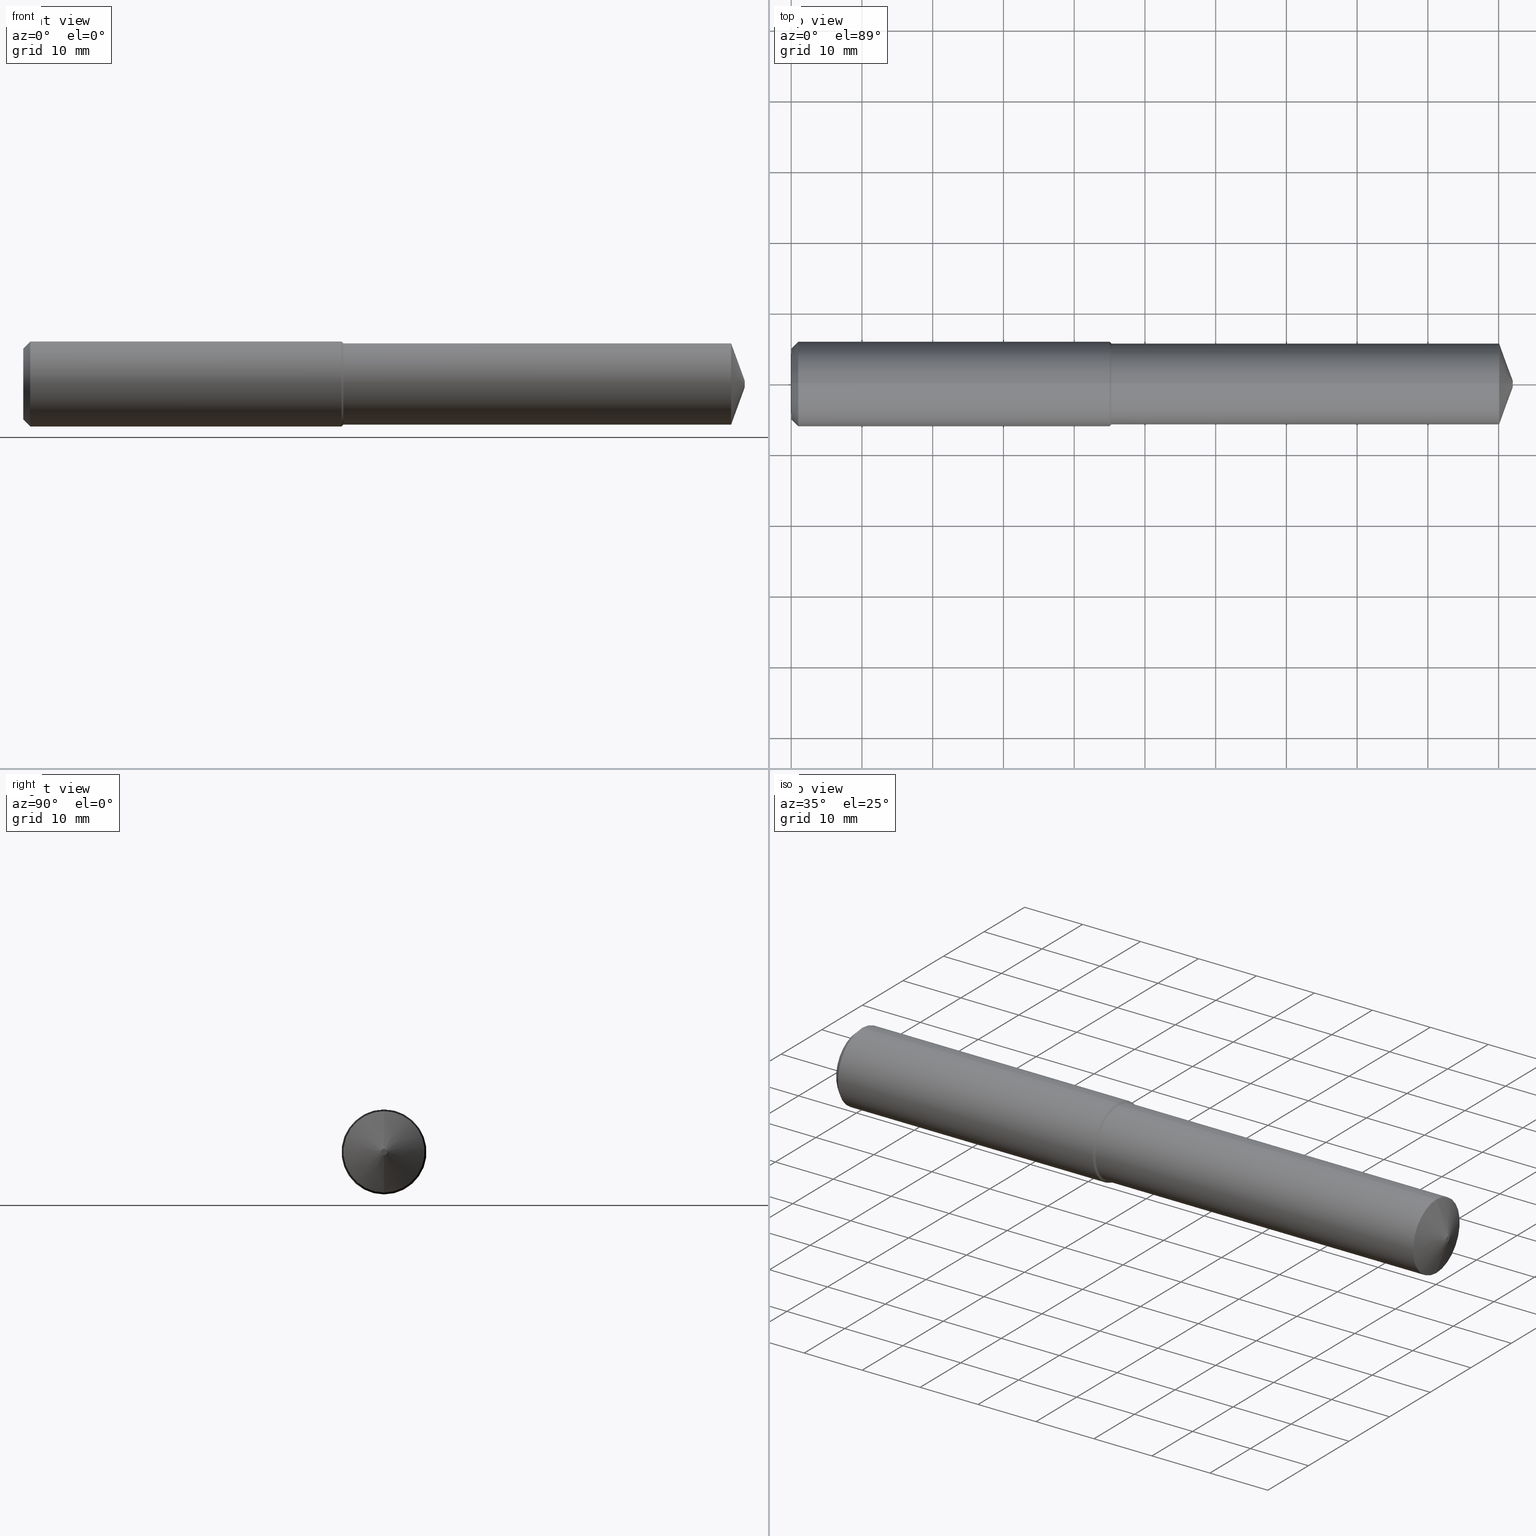
[diagram: canonical four-view strip — front | top / right | iso, engineering-drawing reading convention]
A machine part, canonical four-view strip (front | top / right | iso — engineering-drawing reading convention). The complete STEP part file that produces these views, byte-faithful:
ISO-10303-21;
HEADER;
FILE_DESCRIPTION (( 'STEP AP203' ),
    '1' );
FILE_NAME ('407006-DFX3-452A.STEP',
    '2024-10-02T21:16:29',
    ( '' ),
    ( '' ),
    'SwSTEP 2.0',
    'SolidWorks 2024',
    '' );
FILE_SCHEMA (( 'CONFIG_CONTROL_DESIGN' ));
ENDSEC;

DATA;
#1 = EDGE_CURVE ( 'NONE', #365, #278, #6, .T. ) ;
#2 = ADVANCED_FACE ( 'NONE', ( #90 ), #323, .T. ) ;
#3 = CARTESIAN_POINT ( 'NONE',  ( -0.03808593750000075634, 2.892866454678788763E-17, 0.2362204724409450174 ) ) ;
#4 = CARTESIAN_POINT ( 'NONE',  ( 4.015748031496062964, 0.000000000000000000, 0.000000000000000000 ) ) ;
#5 = DESIGN_CONTEXT ( 'detailed design', #164, 'design' ) ;
#6 = LINE ( 'NONE', #199, #132 ) ;
#7 = CARTESIAN_POINT ( 'NONE',  ( 0.03937007874015747977, 2.892866454678788147E-17, 0.2362204724409449619 ) ) ;
#8 = APPROVAL_STATUS ( 'not_yet_approved' ) ;
#9 = VERTEX_POINT ( 'NONE', #125 ) ;
#10 = DIRECTION ( 'NONE',  ( 0.7071067811865472397, 8.659560562354936556E-17, 0.7071067811865477948 ) ) ;
#11 = CONICAL_SURFACE ( 'NONE', #325, 0.2260000000000002007, 0.7853981633974382870 ) ;
#12 = CC_DESIGN_PERSON_AND_ORGANIZATION_ASSIGNMENT ( #120, #277, ( #167 ) ) ;
#13 = EDGE_LOOP ( 'NONE', ( #244, #76, #34, #363 ) ) ;
#14 = ORIENTED_EDGE ( 'NONE', *, *, #58, .T. ) ;
#15 = DATE_AND_TIME ( #180, #293 ) ;
#16 = ORIENTED_EDGE ( 'NONE', *, *, #71, .F. ) ;
#17 = EDGE_CURVE ( 'NONE', #210, #298, #220, .T. ) ;
#18 = PRODUCT_DEFINITION ( 'UNKNOWN', '', #167, #5 ) ;
#19 = CONICAL_SURFACE ( 'NONE', #211, 0.01750000000000049780, 1.221730476396032827 ) ;
#20 = CARTESIAN_POINT ( 'NONE',  ( 3.939860237651560126, 0.000000000000000000, 0.000000000000000000 ) ) ;
#21 = ORIENTED_EDGE ( 'NONE', *, *, #316, .T. ) ;
#22 = FACE_OUTER_BOUND ( 'NONE', #267, .T. ) ;
#23 = DATE_AND_TIME ( #65, #41 ) ;
#24 = DIRECTION ( 'NONE',  ( -1.000000000000000000, 0.000000000000000000, 0.000000000000000000 ) ) ;
#25 = DIRECTION ( 'NONE',  ( 0.000000000000000000, 0.000000000000000000, 1.000000000000000000 ) ) ;
#26 = APPROVAL ( #248, 'UNSPECIFIED' ) ;
#27 = DIRECTION ( 'NONE',  ( 0.000000000000000000, 0.000000000000000000, 1.000000000000000000 ) ) ;
#28 = PLANE ( 'NONE',  #317 ) ;
#29 = APPROVAL ( #8, 'UNSPECIFIED' ) ;
#30 = DIRECTION ( 'NONE',  ( 0.000000000000000000, 0.000000000000000000, 1.000000000000000000 ) ) ;
#31 = CARTESIAN_POINT ( 'NONE',  ( 1.781874015748031725, 2.767701766073021672E-17, 0.2260000000000002007 ) ) ;
#32 = DIRECTION ( 'NONE',  ( 0.000000000000000000, 0.000000000000000000, -1.000000000000000000 ) ) ;
#33 = DIRECTION ( 'NONE',  ( 0.000000000000000000, 0.000000000000000000, 1.000000000000000000 ) ) ;
#34 = ORIENTED_EDGE ( 'NONE', *, *, #197, .T. ) ;
#35 = EDGE_LOOP ( 'NONE', ( #150, #207, #356, #337 ) ) ;
#36 = APPLICATION_CONTEXT ( 'configuration controlled 3d designs of mechanical parts and assemblies' ) ;
#37 = DIRECTION ( 'NONE',  ( 0.000000000000000000, 0.000000000000000000, -1.000000000000000000 ) ) ;
#38 = ORIENTED_EDGE ( 'NONE', *, *, #287, .F. ) ;
#39 = VECTOR ( 'NONE', #51, 39.37007874015748143 ) ;
#40 = DATE_TIME_ROLE ( 'creation_date' ) ;
#41 = LOCAL_TIME ( 14, 16, 29.00000000000000000, #326 ) ;
#42 = EDGE_LOOP ( 'NONE', ( #240, #327 ) ) ;
#43 = ORIENTED_EDGE ( 'NONE', *, *, #82, .F. ) ;
#44 = ADVANCED_FACE ( 'NONE', ( #268 ), #19, .T. ) ;
#45 = LINE ( 'NONE', #300, #53 ) ;
#46 = EDGE_LOOP ( 'NONE', ( #361, #14, #21, #333 ) ) ;
#47 = CARTESIAN_POINT ( 'NONE',  ( 0.03937007874015747977, 0.000000000000000000, 0.000000000000000000 ) ) ;
#48 = DIRECTION ( 'NONE',  ( 1.000000000000000000, -0.000000000000000000, -0.000000000000000000 ) ) ;
#49 = PERSON_AND_ORGANIZATION ( #276, #212 ) ;
#50 = DIRECTION ( 'NONE',  ( -0.7071067811865545671, 8.659560562354846577E-17, -0.7071067811865404673 ) ) ;
#51 = DIRECTION ( 'NONE',  ( 1.000000000000000000, -0.000000000000000000, -0.000000000000000000 ) ) ;
#52 = DIRECTION ( 'NONE',  ( 0.000000000000000000, 0.000000000000000000, -1.000000000000000000 ) ) ;
#53 = VECTOR ( 'NONE', #10, 39.37007874015748143 ) ;
#54 = AXIS2_PLACEMENT_3D ( 'NONE', #374, #134, #254 ) ;
#55 = APPROVAL_PERSON_ORGANIZATION ( #359, #29, #204 ) ;
#56 = CARTESIAN_POINT ( 'NONE',  ( 3.939860237651560126, 0.000000000000000000, 0.000000000000000000 ) ) ;
#57 = ADVANCED_FACE ( 'NONE', ( #178 ), #246, .T. ) ;
#58 = EDGE_CURVE ( 'NONE', #261, #9, #259, .T. ) ;
#59 = DIRECTION ( 'NONE',  ( 0.000000000000000000, 0.000000000000000000, -1.000000000000000000 ) ) ;
#60 = CARTESIAN_POINT ( 'NONE',  ( 0.03937007874015747977, 0.000000000000000000, -0.2362204724409449619 ) ) ;
#61 = VECTOR ( 'NONE', #176, 39.37007874015748143 ) ;
#62 = ORIENTED_EDGE ( 'NONE', *, *, #213, .T. ) ;
#63 = CARTESIAN_POINT ( 'NONE',  ( -0.03808593750000075634, 0.000000000000000000, 0.000000000000000000 ) ) ;
#64 = APPROVAL_PERSON_ORGANIZATION ( #271, #67, #367 ) ;
#65 = CALENDAR_DATE ( 2024, 2, 10 ) ;
#66 = ORIENTED_EDGE ( 'NONE', *, *, #296, .T. ) ;
#67 = APPROVAL ( #328, 'UNSPECIFIED' ) ;
#68 = DATE_AND_TIME ( #214, #173 ) ;
#69 = APPROVAL_DATE_TIME ( #243, #29 ) ;
#70 = VERTEX_POINT ( 'NONE', #98 ) ;
#71 = EDGE_CURVE ( 'NONE', #121, #298, #45, .T. ) ;
#72 = DIRECTION ( 'NONE',  ( 1.000000000000000000, 0.000000000000000000, 0.000000000000000000 ) ) ;
#73 = ORIENTED_EDGE ( 'NONE', *, *, #272, .F. ) ;
#74 = DIRECTION ( 'NONE',  ( 1.000000000000000000, -0.000000000000000000, -0.000000000000000000 ) ) ;
#75 = SECURITY_CLASSIFICATION_LEVEL ( 'unclassified' ) ;
#76 = ORIENTED_EDGE ( 'NONE', *, *, #92, .F. ) ;
#77 = DIRECTION ( 'NONE',  ( 1.000000000000000000, -0.000000000000000000, -0.000000000000000000 ) ) ;
#78 = VECTOR ( 'NONE', #110, 39.37007874015748143 ) ;
#79 = AXIS2_PLACEMENT_3D ( 'NONE', #4, #291, #30 ) ;
#80 = CARTESIAN_POINT ( 'NONE',  ( 1.771653543307086576, 0.000000000000000000, 0.2362204724409451007 ) ) ;
#81 = DIRECTION ( 'NONE',  ( 1.000000000000000000, -0.000000000000000000, -0.000000000000000000 ) ) ;
#82 = EDGE_CURVE ( 'NONE', #298, #210, #262, .T. ) ;
#83 = CARTESIAN_POINT ( 'NONE',  ( 1.186075246418296407E-18, 0.1968503937007874405, 0.000000000000000000 ) ) ;
#84 = AXIS2_PLACEMENT_3D ( 'NONE', #373, #48, #136 ) ;
#85 = CONICAL_SURFACE ( 'NONE', #79, 0.01750000000000049780, 1.221730476396032827 ) ;
#86 = FACE_OUTER_BOUND ( 'NONE', #329, .T. ) ;
#87 = LINE ( 'NONE', #320, #336 ) ;
#88 = CIRCLE ( 'NONE', #302, 0.2362204724409451007 ) ;
#89 = ADVANCED_BREP_SHAPE_REPRESENTATION ( '407006-DFX3-452A', ( #138, #113 ), #247 ) ;
#90 = FACE_OUTER_BOUND ( 'NONE', #181, .T. ) ;
#91 =( NAMED_UNIT ( * ) PLANE_ANGLE_UNIT ( ) SI_UNIT ( $, .RADIAN. ) );
#92 = EDGE_CURVE ( 'NONE', #154, #365, #295, .T. ) ;
#93 = EDGE_LOOP ( 'NONE', ( #205, #234, #97, #299 ) ) ;
#94 = LOCAL_TIME ( 14, 16, 29.00000000000000000, #155 ) ;
#95 = ORIENTED_EDGE ( 'NONE', *, *, #17, .F. ) ;
#96 = EDGE_LOOP ( 'NONE', ( #16, #66, #303, #43 ) ) ;
#97 = ORIENTED_EDGE ( 'NONE', *, *, #107, .T. ) ;
#98 = CARTESIAN_POINT ( 'NONE',  ( 3.939860237651560126, 0.000000000000000000, 0.2260000000000005060 ) ) ;
#99 = COORDINATED_UNIVERSAL_TIME_OFFSET ( 8, 0, .BEHIND. ) ;
#100 = ORIENTED_EDGE ( 'NONE', *, *, #272, .T. ) ;
#101 = DIRECTION ( 'NONE',  ( -1.000000000000000000, 0.000000000000000000, 0.000000000000000000 ) ) ;
#102 = CARTESIAN_POINT ( 'NONE',  ( 0.03937007874015747977, 0.000000000000000000, 0.000000000000000000 ) ) ;
#103 = CARTESIAN_POINT ( 'NONE',  ( 1.781874015748031725, 0.000000000000000000, 0.2260000000000002007 ) ) ;
#104 = AXIS2_PLACEMENT_3D ( 'NONE', #206, #351, #228 ) ;
#105 = CARTESIAN_POINT ( 'NONE',  ( 4.268512490100411279E-18, 0.000000000000000000, -0.1968503937007874405 ) ) ;
#106 = EDGE_CURVE ( 'NONE', #365, #154, #171, .T. ) ;
#107 = EDGE_CURVE ( 'NONE', #152, #158, #201, .T. ) ;
#108 = DATE_AND_TIME ( #288, #350 ) ;
#109 = FACE_OUTER_BOUND ( 'NONE', #275, .T. ) ;
#110 = DIRECTION ( 'NONE',  ( -0.7071067811865545671, 0.000000000000000000, 0.7071067811865404673 ) ) ;
#111 = VECTOR ( 'NONE', #255, 39.37007874015748143 ) ;
#112 = CC_DESIGN_SECURITY_CLASSIFICATION ( #344, ( #167 ) ) ;
#113 = AXIS2_PLACEMENT_3D ( 'NONE', #183, #209, #72 ) ;
#114 = EDGE_CURVE ( 'NONE', #261, #158, #286, .T. ) ;
#115 = EDGE_CURVE ( 'NONE', #9, #261, #280, .T. ) ;
#116 = FACE_OUTER_BOUND ( 'NONE', #46, .T. ) ;
#117 = PERSON_AND_ORGANIZATION ( #276, #212 ) ;
#118 = ORIENTED_EDGE ( 'NONE', *, *, #257, .F. ) ;
#119 = DIRECTION ( 'NONE',  ( 1.000000000000000000, -0.000000000000000000, -0.000000000000000000 ) ) ;
#120 = PERSON_AND_ORGANIZATION ( #276, #212 ) ;
#121 = VERTEX_POINT ( 'NONE', #342 ) ;
#122 = DIRECTION ( 'NONE',  ( 0.000000000000000000, 0.000000000000000000, -1.000000000000000000 ) ) ;
#123 = PRODUCT_RELATED_PRODUCT_CATEGORY ( 'detail', '', ( #208 ) ) ;
#124 = ORIENTED_EDGE ( 'NONE', *, *, #227, .F. ) ;
#125 = CARTESIAN_POINT ( 'NONE',  ( 1.781874015748031725, 0.000000000000000000, -0.2260000000000002007 ) ) ;
#126 = AXIS2_PLACEMENT_3D ( 'NONE', #377, #251, #162 ) ;
#127 = CC_DESIGN_APPROVAL ( #29, ( #18 ) ) ;
#128 = DIRECTION ( 'NONE',  ( 1.000000000000000000, -0.000000000000000000, -0.000000000000000000 ) ) ;
#129 = DATE_TIME_ROLE ( 'classification_date' ) ;
#130 = FACE_OUTER_BOUND ( 'NONE', #184, .T. ) ;
#131 = DIRECTION ( 'NONE',  ( 0.000000000000000000, 0.000000000000000000, -1.000000000000000000 ) ) ;
#132 = VECTOR ( 'NONE', #230, 39.37007874015748143 ) ;
#133 = VECTOR ( 'NONE', #185, 39.37007874015748143 ) ;
#134 = DIRECTION ( 'NONE',  ( 1.000000000000000000, -0.000000000000000000, -0.000000000000000000 ) ) ;
#135 = ADVANCED_FACE ( 'NONE', ( #345 ), #28, .T. ) ;
#136 = DIRECTION ( 'NONE',  ( 0.000000000000000000, 0.000000000000000000, -1.000000000000000000 ) ) ;
#137 = LINE ( 'NONE', #191, #111 ) ;
#138 = MANIFOLD_SOLID_BREP ( 'Body', #324 ) ;
#139 = CIRCLE ( 'NONE', #349, 0.2260000000000004783 ) ;
#140 = LINE ( 'NONE', #266, #61 ) ;
#141 = DIRECTION ( 'NONE',  ( 1.000000000000000000, -0.000000000000000000, -0.000000000000000000 ) ) ;
#142 = DIRECTION ( 'NONE',  ( 1.000000000000000000, -0.000000000000000000, -0.000000000000000000 ) ) ;
#143 = DIMENSIONAL_EXPONENTS ( 1.000000000000000000, 0.000000000000000000, 0.000000000000000000, 0.000000000000000000, 0.000000000000000000, 0.000000000000000000, 0.000000000000000000 ) ;
#144 = AXIS2_PLACEMENT_3D ( 'NONE', #102, #219, #163 ) ;
#145 = ADVANCED_FACE ( 'NONE', ( #86 ), #309, .T. ) ;
#146 = CC_DESIGN_PERSON_AND_ORGANIZATION_ASSIGNMENT ( #239, #362, ( #208 ) ) ;
#147 = DIRECTION ( 'NONE',  ( 0.7071067811865472397, 0.000000000000000000, -0.7071067811865477948 ) ) ;
#148 = DIRECTION ( 'NONE',  ( 1.000000000000000000, -0.000000000000000000, -0.000000000000000000 ) ) ;
#149 = APPLICATION_PROTOCOL_DEFINITION ( 'international standard', 'config_control_design', 1994, #36 ) ;
#150 = ORIENTED_EDGE ( 'NONE', *, *, #106, .F. ) ;
#151 = LENGTH_MEASURE_WITH_UNIT ( LENGTH_MEASURE( 0.02539999999999999897 ), #297 );
#152 = VERTEX_POINT ( 'NONE', #189 ) ;
#153 = APPROVAL_DATE_TIME ( #68, #67 ) ;
#154 = VERTEX_POINT ( 'NONE', #282 ) ;
#155 = COORDINATED_UNIVERSAL_TIME_OFFSET ( 8, 0, .BEHIND. ) ;
#156 = ORIENTED_EDGE ( 'NONE', *, *, #186, .F. ) ;
#157 = PERSON_AND_ORGANIZATION_ROLE ( 'creator' ) ;
#158 = VERTEX_POINT ( 'NONE', #80 ) ;
#159 = ADVANCED_FACE ( 'NONE', ( #22 ), #222, .T. ) ;
#160 = CIRCLE ( 'NONE', #354, 0.1968503937007874405 ) ;
#161 = CARTESIAN_POINT ( 'NONE',  ( 1.771653543307086576, 0.000000000000000000, 0.000000000000000000 ) ) ;
#162 = DIRECTION ( 'NONE',  ( 0.000000000000000000, 0.000000000000000000, -1.000000000000000000 ) ) ;
#163 = DIRECTION ( 'NONE',  ( 0.000000000000000000, 0.000000000000000000, -1.000000000000000000 ) ) ;
#164 = APPLICATION_CONTEXT ( 'configuration controlled 3d designs of mechanical parts and assemblies' ) ;
#165 = CONICAL_SURFACE ( 'NONE', #54, 0.2362204724409449619, 0.7853981633974487231 ) ;
#166 = DIRECTION ( 'NONE',  ( -0.000000000000000000, 0.000000000000000000, -1.000000000000000000 ) ) ;
#167 = PRODUCT_DEFINITION_FORMATION_WITH_SPECIFIED_SOURCE ( 'ANY', '', #208, .NOT_KNOWN. ) ;
#168 = CARTESIAN_POINT ( 'NONE',  ( 0.03937007874015747977, 0.000000000000000000, -0.2362204724409449619 ) ) ;
#169 = LINE ( 'NONE', #60, #226 ) ;
#170 = CARTESIAN_POINT ( 'NONE',  ( -0.03808593750000075634, 0.000000000000000000, 0.000000000000000000 ) ) ;
#171 = CIRCLE ( 'NONE', #221, 0.01750000000000049780 ) ;
#172 = EDGE_CURVE ( 'NONE', #210, #152, #190, .T. ) ;
#173 = LOCAL_TIME ( 14, 16, 29.00000000000000000, #99 ) ;
#174 = ORIENTED_EDGE ( 'NONE', *, *, #371, .T. ) ;
#175 = ORIENTED_EDGE ( 'NONE', *, *, #296, .F. ) ;
#176 = DIRECTION ( 'NONE',  ( 1.000000000000000000, -0.000000000000000000, -0.000000000000000000 ) ) ;
#177 = ORIENTED_EDGE ( 'NONE', *, *, #82, .T. ) ;
#178 = FACE_OUTER_BOUND ( 'NONE', #238, .T. ) ;
#179 = CC_DESIGN_PERSON_AND_ORGANIZATION_ASSIGNMENT ( #357, #200, ( #344 ) ) ;
#180 = CALENDAR_DATE ( 2024, 2, 10 ) ;
#181 = EDGE_LOOP ( 'NONE', ( #38, #177, #270, #73 ) ) ;
#182 = AXIS2_PLACEMENT_3D ( 'NONE', #170, #142, #59 ) ;
#183 = CARTESIAN_POINT ( 'NONE',  ( 0.000000000000000000, 0.000000000000000000, 0.000000000000000000 ) ) ;
#184 = EDGE_LOOP ( 'NONE', ( #62, #202, #95, #118 ) ) ;
#185 = DIRECTION ( 'NONE',  ( 1.000000000000000000, -0.000000000000000000, -0.000000000000000000 ) ) ;
#186 = EDGE_CURVE ( 'NONE', #9, #152, #319, .T. ) ;
#187 = ORIENTED_EDGE ( 'NONE', *, *, #17, .T. ) ;
#188 = ADVANCED_FACE ( 'NONE', ( #130 ), #310, .T. ) ;
#189 = CARTESIAN_POINT ( 'NONE',  ( 1.771653543307086576, 2.892866454678789996E-17, -0.2362204724409451007 ) ) ;
#190 = LINE ( 'NONE', #258, #39 ) ;
#191 = CARTESIAN_POINT ( 'NONE',  ( 4.015748031496062964, 0.000000000000000000, 0.01750000000000049780 ) ) ;
#192 = VECTOR ( 'NONE', #50, 39.37007874015748143 ) ;
#193 = CARTESIAN_POINT ( 'NONE',  ( 1.781874015748031725, 0.000000000000000000, 0.000000000000000000 ) ) ;
#194 = CC_DESIGN_DATE_AND_TIME_ASSIGNMENT ( #15, #40, ( #18 ) ) ;
#195 = DIRECTION ( 'NONE',  ( -1.000000000000000000, 0.000000000000000000, 0.000000000000000000 ) ) ;
#196 = CC_DESIGN_APPROVAL ( #67, ( #167 ) ) ;
#197 = EDGE_CURVE ( 'NONE', #154, #70, #137, .T. ) ;
#198 = CYLINDRICAL_SURFACE ( 'NONE', #182, 0.2260000000000003395 ) ;
#199 = CARTESIAN_POINT ( 'NONE',  ( 4.015748031496062964, 2.143131898507929234E-18, -0.01750000000000049780 ) ) ;
#200 = PERSON_AND_ORGANIZATION_ROLE ( 'classification_officer' ) ;
#201 = CIRCLE ( 'NONE', #322, 0.2362204724409451007 ) ;
#202 = ORIENTED_EDGE ( 'NONE', *, *, #71, .T. ) ;
#203 = CC_DESIGN_APPROVAL ( #26, ( #344 ) ) ;
#204 = APPROVAL_ROLE ( '' ) ;
#205 = ORIENTED_EDGE ( 'NONE', *, *, #115, .F. ) ;
#206 = CARTESIAN_POINT ( 'NONE',  ( 4.015748031496062964, 0.000000000000000000, 0.000000000000000000 ) ) ;
#207 = ORIENTED_EDGE ( 'NONE', *, *, #1, .T. ) ;
#208 = PRODUCT ( '407006-DFX3-452A', '407006-DFX3-452A', '', ( #304 ) ) ;
#209 = DIRECTION ( 'NONE',  ( 0.000000000000000000, 0.000000000000000000, 1.000000000000000000 ) ) ;
#210 = VERTEX_POINT ( 'NONE', #168 ) ;
#211 = AXIS2_PLACEMENT_3D ( 'NONE', #250, #101, #307 ) ;
#212 = ORGANIZATION ( 'UNSPECIFIED', 'UNSPECIFIED', '' ) ;
#213 = EDGE_CURVE ( 'NONE', #232, #121, #368, .T. ) ;
#214 = CALENDAR_DATE ( 2024, 2, 10 ) ;
#215 = ADVANCED_FACE ( 'NONE', ( #109 ), #11, .T. ) ;
#216 = ORIENTED_EDGE ( 'NONE', *, *, #213, .F. ) ;
#217 = CARTESIAN_POINT ( 'NONE',  ( 1.781874015748031725, 0.000000000000000000, 0.000000000000000000 ) ) ;
#218 = CARTESIAN_POINT ( 'NONE',  ( 0.03937007874015747977, 0.000000000000000000, 0.000000000000000000 ) ) ;
#219 = DIRECTION ( 'NONE',  ( 1.000000000000000000, -0.000000000000000000, -0.000000000000000000 ) ) ;
#220 = CIRCLE ( 'NONE', #284, 0.2362204724409449619 ) ;
#221 = AXIS2_PLACEMENT_3D ( 'NONE', #347, #81, #315 ) ;
#222 = PLANE ( 'NONE',  #233 ) ;
#223 = CC_DESIGN_DATE_AND_TIME_ASSIGNMENT ( #23, #129, ( #344 ) ) ;
#224 = FACE_OUTER_BOUND ( 'NONE', #93, .T. ) ;
#225 = AXIS2_PLACEMENT_3D ( 'NONE', #331, #74, #334 ) ;
#226 = VECTOR ( 'NONE', #147, 39.37007874015748143 ) ;
#227 = EDGE_CURVE ( 'NONE', #278, #70, #139, .T. ) ;
#228 = DIRECTION ( 'NONE',  ( 0.000000000000000000, 0.000000000000000000, -1.000000000000000000 ) ) ;
#229 = ADVANCED_FACE ( 'NONE', ( #252 ), #165, .T. ) ;
#230 = DIRECTION ( 'NONE',  ( -0.3420201433256667145, 1.150791560227851256E-16, -0.9396926207859090940 ) ) ;
#231 = CARTESIAN_POINT ( 'NONE',  ( 1.781874015748031725, 0.000000000000000000, 0.000000000000000000 ) ) ;
#232 = VERTEX_POINT ( 'NONE', #105 ) ;
#233 = AXIS2_PLACEMENT_3D ( 'NONE', #83, #24, #27 ) ;
#234 = ORIENTED_EDGE ( 'NONE', *, *, #186, .T. ) ;
#235 = PERSON_AND_ORGANIZATION_ROLE ( 'design_supplier' ) ;
#236 = DIRECTION ( 'NONE',  ( 1.000000000000000000, -0.000000000000000000, -0.000000000000000000 ) ) ;
#237 = AXIS2_PLACEMENT_3D ( 'NONE', #231, #195, #33 ) ;
#238 = EDGE_LOOP ( 'NONE', ( #273, #174, #124, #249 ) ) ;
#239 = PERSON_AND_ORGANIZATION ( #276, #212 ) ;
#240 = ORIENTED_EDGE ( 'NONE', *, *, #92, .T. ) ;
#241 = ADVANCED_FACE ( 'NONE', ( #224 ), #358, .T. ) ;
#242 = DIRECTION ( 'NONE',  ( 1.000000000000000000, -0.000000000000000000, -0.000000000000000000 ) ) ;
#243 = DATE_AND_TIME ( #332, #94 ) ;
#244 = ORIENTED_EDGE ( 'NONE', *, *, #1, .F. ) ;
#245 = CARTESIAN_POINT ( 'NONE',  ( 4.268512490100411279E-18, 0.000000000000000000, 0.000000000000000000 ) ) ;
#246 = CYLINDRICAL_SURFACE ( 'NONE', #225, 0.2260000000000003395 ) ;
#247 =( GEOMETRIC_REPRESENTATION_CONTEXT ( 3 ) GLOBAL_UNCERTAINTY_ASSIGNED_CONTEXT ( ( #330 ) ) GLOBAL_UNIT_ASSIGNED_CONTEXT ( ( #269, #91, #335 ) ) REPRESENTATION_CONTEXT ( 'NONE', 'WORKASPACE' ) );
#248 = APPROVAL_STATUS ( 'not_yet_approved' ) ;
#249 = ORIENTED_EDGE ( 'NONE', *, *, #316, .F. ) ;
#250 = CARTESIAN_POINT ( 'NONE',  ( 4.015748031496062964, 0.000000000000000000, 0.000000000000000000 ) ) ;
#251 = DIRECTION ( 'NONE',  ( 1.000000000000000000, -0.000000000000000000, -0.000000000000000000 ) ) ;
#252 = FACE_OUTER_BOUND ( 'NONE', #96, .T. ) ;
#253 = AXIS2_PLACEMENT_3D ( 'NONE', #283, #77, #378 ) ;
#254 = DIRECTION ( 'NONE',  ( 0.000000000000000000, 0.000000000000000000, -1.000000000000000000 ) ) ;
#255 = DIRECTION ( 'NONE',  ( -0.3420201433256667145, 0.000000000000000000, 0.9396926207859090940 ) ) ;
#256 = PRODUCT_DEFINITION_SHAPE ( 'NONE', 'NONE',  #18 ) ;
#257 = EDGE_CURVE ( 'NONE', #232, #210, #169, .T. ) ;
#258 = CARTESIAN_POINT ( 'NONE',  ( -0.03808593750000075634, 0.000000000000000000, -0.2362204724409450174 ) ) ;
#259 = CIRCLE ( 'NONE', #279, 0.2260000000000002007 ) ;
#260 = LINE ( 'NONE', #3, #133 ) ;
#261 = VERTEX_POINT ( 'NONE', #31 ) ;
#262 = CIRCLE ( 'NONE', #343, 0.2362204724409449619 ) ;
#263 = DIRECTION ( 'NONE',  ( 1.000000000000000000, -0.000000000000000000, -0.000000000000000000 ) ) ;
#264 = ORIENTED_EDGE ( 'NONE', *, *, #287, .T. ) ;
#265 = DIRECTION ( 'NONE',  ( 0.000000000000000000, 0.000000000000000000, -1.000000000000000000 ) ) ;
#266 = CARTESIAN_POINT ( 'NONE',  ( -0.03808593750000075634, 2.767701766073022289E-17, 0.2260000000000003395 ) ) ;
#267 = EDGE_LOOP ( 'NONE', ( #216, #175 ) ) ;
#268 = FACE_OUTER_BOUND ( 'NONE', #13, .T. ) ;
#269 =( CONVERSION_BASED_UNIT ( 'INCH', #151 ) LENGTH_UNIT ( ) NAMED_UNIT ( #143 ) );
#270 = ORIENTED_EDGE ( 'NONE', *, *, #172, .T. ) ;
#271 = PERSON_AND_ORGANIZATION ( #276, #212 ) ;
#272 = EDGE_CURVE ( 'NONE', #158, #152, #88, .T. ) ;
#273 = ORIENTED_EDGE ( 'NONE', *, *, #115, .T. ) ;
#274 = COORDINATED_UNIVERSAL_TIME_OFFSET ( 8, 0, .BEHIND. ) ;
#275 = EDGE_LOOP ( 'NONE', ( #156, #339, #308, #100 ) ) ;
#276 = PERSON ( 'UNSPECIFIED', 'UNSPECIFIED', 'UNSPECIFIED', ('UNSPECIFIED'), ('UNSPECIFIED'), ('UNSPECIFIED') ) ;
#277 = PERSON_AND_ORGANIZATION_ROLE ( 'creator' ) ;
#278 = VERTEX_POINT ( 'NONE', #292 ) ;
#279 = AXIS2_PLACEMENT_3D ( 'NONE', #217, #242, #366 ) ;
#280 = CIRCLE ( 'NONE', #84, 0.2260000000000002007 ) ;
#281 = DIRECTION ( 'NONE',  ( 1.000000000000000000, 0.000000000000000000, -0.000000000000000000 ) ) ;
#282 = CARTESIAN_POINT ( 'NONE',  ( 4.015748031496062964, 0.000000000000000000, 0.01750000000000049780 ) ) ;
#283 = CARTESIAN_POINT ( 'NONE',  ( 4.268512490100411279E-18, 0.000000000000000000, 0.000000000000000000 ) ) ;
#284 = AXIS2_PLACEMENT_3D ( 'NONE', #47, #128, #122 ) ;
#285 = AXIS2_PLACEMENT_3D ( 'NONE', #20, #236, #37 ) ;
#286 = LINE ( 'NONE', #103, #78 ) ;
#287 = EDGE_CURVE ( 'NONE', #298, #158, #260, .T. ) ;
#288 = CALENDAR_DATE ( 2024, 2, 10 ) ;
#289 = DIRECTION ( 'NONE',  ( 1.000000000000000000, -0.000000000000000000, -0.000000000000000000 ) ) ;
#290 = CARTESIAN_POINT ( 'NONE',  ( 1.771653543307086576, 0.000000000000000000, 0.000000000000000000 ) ) ;
#291 = DIRECTION ( 'NONE',  ( -1.000000000000000000, 0.000000000000000000, 0.000000000000000000 ) ) ;
#292 = CARTESIAN_POINT ( 'NONE',  ( 3.939860237651560126, 2.767701766073025062E-17, -0.2260000000000005060 ) ) ;
#293 = LOCAL_TIME ( 14, 16, 29.00000000000000000, #274 ) ;
#294 = CARTESIAN_POINT ( 'NONE',  ( 4.015748031496062964, 1.491007477961908473E-17, -0.01750000000000049780 ) ) ;
#295 = CIRCLE ( 'NONE', #104, 0.01750000000000049780 ) ;
#296 = EDGE_CURVE ( 'NONE', #121, #232, #160, .T. ) ;
#297 =( LENGTH_UNIT ( ) NAMED_UNIT ( * ) SI_UNIT ( $, .METRE. ) );
#298 = VERTEX_POINT ( 'NONE', #7 ) ;
#299 = ORIENTED_EDGE ( 'NONE', *, *, #114, .F. ) ;
#300 = CARTESIAN_POINT ( 'NONE',  ( 0.03937007874015747977, 2.892866454678788147E-17, 0.2362204724409449619 ) ) ;
#301 = APPLICATION_PROTOCOL_DEFINITION ( 'international standard', 'config_control_design', 1994, #164 ) ;
#302 = AXIS2_PLACEMENT_3D ( 'NONE', #290, #141, #352 ) ;
#303 = ORIENTED_EDGE ( 'NONE', *, *, #257, .T. ) ;
#304 = MECHANICAL_CONTEXT ( 'NONE', #36, 'mechanical' ) ;
#305 = ORIENTED_EDGE ( 'NONE', *, *, #107, .F. ) ;
#306 = DIRECTION ( 'NONE',  ( 1.000000000000000000, -0.000000000000000000, -0.000000000000000000 ) ) ;
#307 = DIRECTION ( 'NONE',  ( 0.000000000000000000, 0.000000000000000000, 1.000000000000000000 ) ) ;
#308 = ORIENTED_EDGE ( 'NONE', *, *, #114, .T. ) ;
#309 = CYLINDRICAL_SURFACE ( 'NONE', #126, 0.2362204724409450174 ) ;
#310 = CONICAL_SURFACE ( 'NONE', #144, 0.2362204724409449619, 0.7853981633974487231 ) ;
#311 = APPROVAL_DATE_TIME ( #108, #26 ) ;
#312 = DIRECTION ( 'NONE',  ( -1.000000000000000000, 0.000000000000000000, 0.000000000000000000 ) ) ;
#313 = DIRECTION ( 'NONE',  ( 1.000000000000000000, -0.000000000000000000, -0.000000000000000000 ) ) ;
#314 = ADVANCED_FACE ( 'NONE', ( #116 ), #198, .T. ) ;
#315 = DIRECTION ( 'NONE',  ( 0.000000000000000000, 0.000000000000000000, -1.000000000000000000 ) ) ;
#316 = EDGE_CURVE ( 'NONE', #9, #278, #87, .T. ) ;
#317 = AXIS2_PLACEMENT_3D ( 'NONE', #348, #281, #166 ) ;
#318 = COORDINATED_UNIVERSAL_TIME_OFFSET ( 8, 0, .BEHIND. ) ;
#319 = LINE ( 'NONE', #375, #192 ) ;
#320 = CARTESIAN_POINT ( 'NONE',  ( -0.03808593750000075634, 0.000000000000000000, -0.2260000000000003395 ) ) ;
#321 = FACE_OUTER_BOUND ( 'NONE', #35, .T. ) ;
#322 = AXIS2_PLACEMENT_3D ( 'NONE', #161, #313, #52 ) ;
#323 = CYLINDRICAL_SURFACE ( 'NONE', #353, 0.2362204724409450174 ) ;
#324 = CLOSED_SHELL ( 'NONE', ( #188, #145, #241, #57, #355, #159, #135, #44, #314, #215, #2, #229 ) ) ;
#325 = AXIS2_PLACEMENT_3D ( 'NONE', #193, #312, #25 ) ;
#326 = COORDINATED_UNIVERSAL_TIME_OFFSET ( 8, 0, .BEHIND. ) ;
#327 = ORIENTED_EDGE ( 'NONE', *, *, #106, .T. ) ;
#328 = APPROVAL_STATUS ( 'not_yet_approved' ) ;
#329 = EDGE_LOOP ( 'NONE', ( #187, #264, #305, #370 ) ) ;
#330 = UNCERTAINTY_MEASURE_WITH_UNIT (LENGTH_MEASURE( 1.000000000000000082E-05 ), #269, 'distance_accuracy_value', 'NONE');
#331 = CARTESIAN_POINT ( 'NONE',  ( -0.03808593750000075634, 0.000000000000000000, 0.000000000000000000 ) ) ;
#332 = CALENDAR_DATE ( 2024, 2, 10 ) ;
#333 = ORIENTED_EDGE ( 'NONE', *, *, #372, .F. ) ;
#334 = DIRECTION ( 'NONE',  ( 0.000000000000000000, 0.000000000000000000, -1.000000000000000000 ) ) ;
#335 =( NAMED_UNIT ( * ) SI_UNIT ( $, .STERADIAN. ) SOLID_ANGLE_UNIT ( ) );
#336 = VECTOR ( 'NONE', #263, 39.37007874015748143 ) ;
#337 = ORIENTED_EDGE ( 'NONE', *, *, #197, .F. ) ;
#338 = PERSON_AND_ORGANIZATION ( #276, #212 ) ;
#339 = ORIENTED_EDGE ( 'NONE', *, *, #58, .F. ) ;
#340 = CC_DESIGN_PERSON_AND_ORGANIZATION_ASSIGNMENT ( #117, #157, ( #18 ) ) ;
#341 = DIRECTION ( 'NONE',  ( 0.000000000000000000, 0.000000000000000000, -1.000000000000000000 ) ) ;
#342 = CARTESIAN_POINT ( 'NONE',  ( 4.268512490100411279E-18, 2.651794250122222108E-17, 0.1968503937007874405 ) ) ;
#343 = AXIS2_PLACEMENT_3D ( 'NONE', #218, #119, #341 ) ;
#344 = SECURITY_CLASSIFICATION ( '', '', #75 ) ;
#345 = FACE_OUTER_BOUND ( 'NONE', #42, .T. ) ;
#346 = APPROVAL_ROLE ( '' ) ;
#347 = CARTESIAN_POINT ( 'NONE',  ( 4.015748031496062964, 0.000000000000000000, 0.000000000000000000 ) ) ;
#348 = CARTESIAN_POINT ( 'NONE',  ( 4.015748031496062964, 0.000000000000000000, 0.000000000000000000 ) ) ;
#349 = AXIS2_PLACEMENT_3D ( 'NONE', #56, #289, #131 ) ;
#350 = LOCAL_TIME ( 14, 16, 29.00000000000000000, #318 ) ;
#351 = DIRECTION ( 'NONE',  ( 1.000000000000000000, -0.000000000000000000, -0.000000000000000000 ) ) ;
#352 = DIRECTION ( 'NONE',  ( 0.000000000000000000, 0.000000000000000000, -1.000000000000000000 ) ) ;
#353 = AXIS2_PLACEMENT_3D ( 'NONE', #63, #148, #265 ) ;
#354 = AXIS2_PLACEMENT_3D ( 'NONE', #245, #306, #32 ) ;
#355 = ADVANCED_FACE ( 'NONE', ( #321 ), #85, .T. ) ;
#356 = ORIENTED_EDGE ( 'NONE', *, *, #227, .T. ) ;
#357 = PERSON_AND_ORGANIZATION ( #276, #212 ) ;
#358 = CONICAL_SURFACE ( 'NONE', #237, 0.2260000000000002007, 0.7853981633974382870 ) ;
#359 = PERSON_AND_ORGANIZATION ( #276, #212 ) ;
#360 = CIRCLE ( 'NONE', #285, 0.2260000000000004783 ) ;
#361 = ORIENTED_EDGE ( 'NONE', *, *, #371, .F. ) ;
#362 = PERSON_AND_ORGANIZATION_ROLE ( 'design_owner' ) ;
#363 = ORIENTED_EDGE ( 'NONE', *, *, #372, .T. ) ;
#364 = CC_DESIGN_PERSON_AND_ORGANIZATION_ASSIGNMENT ( #338, #235, ( #167 ) ) ;
#365 = VERTEX_POINT ( 'NONE', #294 ) ;
#366 = DIRECTION ( 'NONE',  ( 0.000000000000000000, 0.000000000000000000, -1.000000000000000000 ) ) ;
#367 = APPROVAL_ROLE ( '' ) ;
#368 = CIRCLE ( 'NONE', #253, 0.1968503937007874405 ) ;
#369 = APPROVAL_PERSON_ORGANIZATION ( #49, #26, #346 ) ;
#370 = ORIENTED_EDGE ( 'NONE', *, *, #172, .F. ) ;
#371 = EDGE_CURVE ( 'NONE', #261, #70, #140, .T. ) ;
#372 = EDGE_CURVE ( 'NONE', #70, #278, #360, .T. ) ;
#373 = CARTESIAN_POINT ( 'NONE',  ( 1.781874015748031725, 0.000000000000000000, 0.000000000000000000 ) ) ;
#374 = CARTESIAN_POINT ( 'NONE',  ( 0.03937007874015747977, 0.000000000000000000, 0.000000000000000000 ) ) ;
#375 = CARTESIAN_POINT ( 'NONE',  ( 1.781874015748031725, 2.767701766073020748E-17, -0.2260000000000002007 ) ) ;
#376 = SHAPE_DEFINITION_REPRESENTATION ( #256, #89 ) ;
#377 = CARTESIAN_POINT ( 'NONE',  ( -0.03808593750000075634, 0.000000000000000000, 0.000000000000000000 ) ) ;
#378 = DIRECTION ( 'NONE',  ( 0.000000000000000000, 0.000000000000000000, -1.000000000000000000 ) ) ;
ENDSEC;
END-ISO-10303-21;
